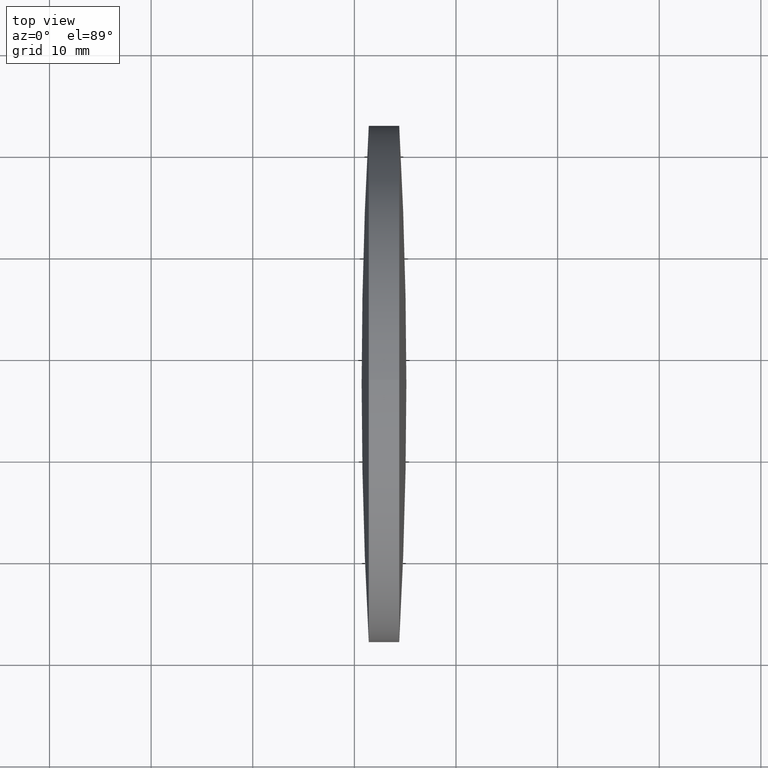
[diagram: clean part render]
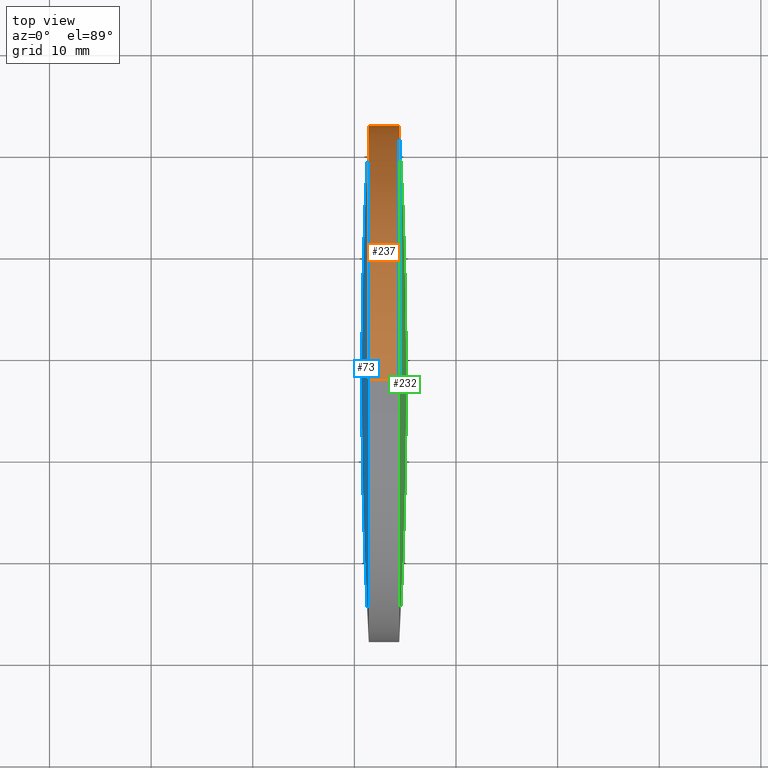
[diagram: same view with three faces highlighted in distinct colors, each labeled with its STEP entity id]
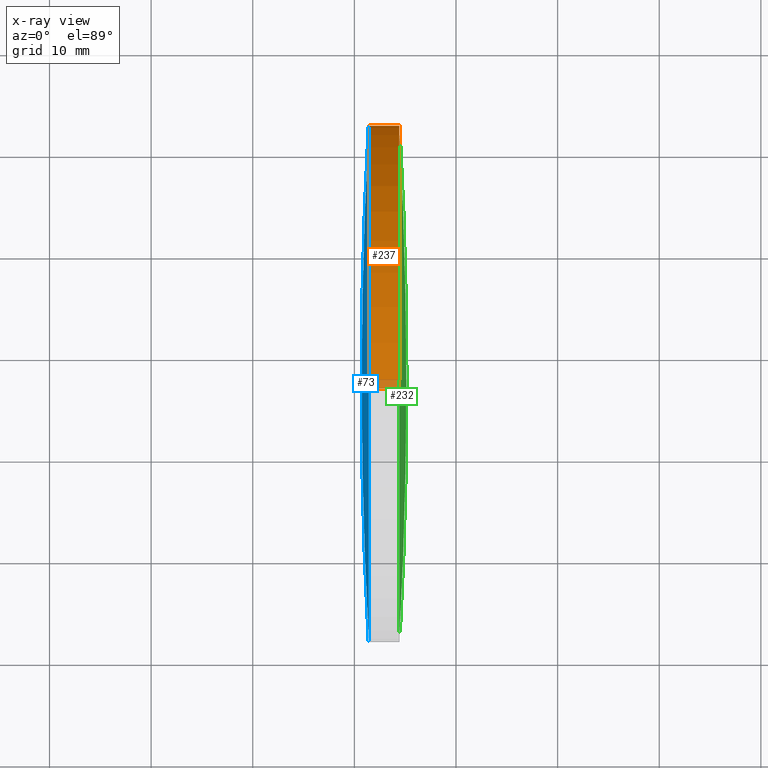
[diagram: x-ray of the same camera — body ghosted, the three highlighted faces saturated]
A machine part, top view with three faces highlighted in distinct colors.
The next image is the same camera in x-ray (body ghosted, the three faces saturated) — at least one of them is partly hidden behind the body in this view.
Their STEP definitions:

[orange] entity #237 — the highlighted cylindrical surface (partial cylindrical patch) has radius 25.4 mm, axis along (-1, -0, -0).
#3 = EDGE_CURVE ( 'NONE', #310, #177, #70, .T. ) ;
#9 = DIRECTION ( 'NONE',  ( -1.000000000000000000, -0.0000000000000000000, -0.0000000000000000000 ) ) ;
#15 = VERTEX_POINT ( 'NONE', #314 ) ;
#29 = EDGE_LOOP ( 'NONE', ( #327, #89, #121, #231, #117, #249 ) ) ;
#31 = DIRECTION ( 'NONE',  ( 0.0000000000000000000, 0.0000000000000000000, 1.000000000000000000 ) ) ;
#34 = DIRECTION ( 'NONE',  ( -1.000000000000000000, -0.0000000000000000000, -0.0000000000000000000 ) ) ;
#36 = DIRECTION ( 'NONE',  ( -1.000000000000000000, -0.0000000000000000000, -0.0000000000000000000 ) ) ;
#53 = DIRECTION ( 'NONE',  ( -1.000000000000000000, -0.0000000000000000000, -0.0000000000000000000 ) ) ;
#54 = EDGE_CURVE ( 'NONE', #195, #310, #289, .T. ) ;
#61 = CARTESIAN_POINT ( 'NONE',  ( 171.4164086921822200, 122.6322260463687600, 0.0000000000000000000 ) ) ;
#65 = CIRCLE ( 'NONE', #77, 25.39999999999999100 ) ;
#70 = CIRCLE ( 'NONE', #189, 25.39999999999999100 ) ;
#77 = AXIS2_PLACEMENT_3D ( 'NONE', #271, #9, #193 ) ;
#79 = DIRECTION ( 'NONE',  ( 0.0000000000000000000, 0.0000000000000000000, 1.000000000000000000 ) ) ;
#89 = ORIENTED_EDGE ( 'NONE', *, *, #203, .T. ) ;
#94 = FACE_OUTER_BOUND ( 'NONE', #29, .T. ) ;
#95 = VERTEX_POINT ( 'NONE', #268 ) ;
#104 = VECTOR ( 'NONE', #34, 1000.000000000000000 ) ;
#106 = AXIS2_PLACEMENT_3D ( 'NONE', #217, #164, #323 ) ;
#112 = CARTESIAN_POINT ( 'NONE',  ( 165.7441079421506900, 97.23222604636956100, 25.39999999999999100 ) ) ;
#117 = ORIENTED_EDGE ( 'NONE', *, *, #205, .F. ) ;
#121 = ORIENTED_EDGE ( 'NONE', *, *, #344, .F. ) ;
#127 = VECTOR ( 'NONE', #320, 1000.000000000000000 ) ;
#133 = CARTESIAN_POINT ( 'NONE',  ( 174.4163664064679400, 97.23222604636956100, 0.0000000000000000000 ) ) ;
#135 = CARTESIAN_POINT ( 'NONE',  ( 174.4163664064679400, 97.23222604636956100, 25.39999999999999100 ) ) ;
#142 = CARTESIAN_POINT ( 'NONE',  ( 174.4163664064679700, 122.6322260463689700, 0.0000000000000000000 ) ) ;
#143 = VERTEX_POINT ( 'NONE', #61 ) ;
#145 = AXIS2_PLACEMENT_3D ( 'NONE', #133, #322, #31 ) ;
#158 = CARTESIAN_POINT ( 'NONE',  ( 174.4163664064679400, 97.23222604636956100, 0.0000000000000000000 ) ) ;
#164 = DIRECTION ( 'NONE',  ( -1.000000000000000000, -0.0000000000000000000, -0.0000000000000000000 ) ) ;
#176 = LINE ( 'NONE', #112, #127 ) ;
#177 = VERTEX_POINT ( 'NONE', #295 ) ;
#183 = DIRECTION ( 'NONE',  ( 0.0000000000000000000, 0.0000000000000000000, 1.000000000000000000 ) ) ;
#189 = AXIS2_PLACEMENT_3D ( 'NONE', #158, #53, #183 ) ;
#191 = LINE ( 'NONE', #292, #104 ) ;
#193 = DIRECTION ( 'NONE',  ( 0.0000000000000000000, 0.0000000000000000000, 1.000000000000000000 ) ) ;
#195 = VERTEX_POINT ( 'NONE', #135 ) ;
#198 = CYLINDRICAL_SURFACE ( 'NONE', #266, 25.39999999999999100 ) ;
#203 = EDGE_CURVE ( 'NONE', #177, #95, #191, .T. ) ;
#205 = EDGE_CURVE ( 'NONE', #195, #15, #176, .T. ) ;
#217 = CARTESIAN_POINT ( 'NONE',  ( 171.4164086921822200, 97.23222604636956100, 0.0000000000000000000 ) ) ;
#231 = ORIENTED_EDGE ( 'NONE', *, *, #326, .F. ) ;
#235 = CARTESIAN_POINT ( 'NONE',  ( 165.7441079421506900, 97.23222604636956100, 0.0000000000000000000 ) ) ;
#237 = ADVANCED_FACE ( 'NONE', ( #94 ), #198, .T. ) ;
#249 = ORIENTED_EDGE ( 'NONE', *, *, #54, .T. ) ;
#263 = CIRCLE ( 'NONE', #106, 25.39999999999999100 ) ;
#266 = AXIS2_PLACEMENT_3D ( 'NONE', #235, #36, #79 ) ;
#268 = CARTESIAN_POINT ( 'NONE',  ( 171.4164086921822200, 97.23222604636956100, -25.39999999999999100 ) ) ;
#271 = CARTESIAN_POINT ( 'NONE',  ( 171.4164086921822200, 97.23222604636956100, 0.0000000000000000000 ) ) ;
#289 = CIRCLE ( 'NONE', #145, 25.39999999999999100 ) ;
#292 = CARTESIAN_POINT ( 'NONE',  ( 165.7441079421506900, 97.23222604636956100, -25.39999999999999100 ) ) ;
#295 = CARTESIAN_POINT ( 'NONE',  ( 174.4163664064679400, 97.23222604636956100, -25.39999999999999100 ) ) ;
#310 = VERTEX_POINT ( 'NONE', #142 ) ;
#314 = CARTESIAN_POINT ( 'NONE',  ( 171.4164086921822200, 97.23222604636956100, 25.39999999999999100 ) ) ;
#320 = DIRECTION ( 'NONE',  ( -1.000000000000000000, -0.0000000000000000000, -0.0000000000000000000 ) ) ;
#322 = DIRECTION ( 'NONE',  ( -1.000000000000000000, -0.0000000000000000000, -0.0000000000000000000 ) ) ;
#323 = DIRECTION ( 'NONE',  ( 0.0000000000000000000, 0.0000000000000000000, 1.000000000000000000 ) ) ;
#326 = EDGE_CURVE ( 'NONE', #15, #143, #65, .T. ) ;
#327 = ORIENTED_EDGE ( 'NONE', *, *, #3, .T. ) ;
#344 = EDGE_CURVE ( 'NONE', #143, #95, #263, .T. ) ;

[blue] entity #73 — the highlighted spherical surface has radius 461.168 mm.
#9 = DIRECTION ( 'NONE',  ( -1.000000000000000000, -0.0000000000000000000, -0.0000000000000000000 ) ) ;
#11 = SPHERICAL_SURFACE ( 'NONE', #24, 461.1675577966281000 ) ;
#15 = VERTEX_POINT ( 'NONE', #314 ) ;
#18 = ORIENTED_EDGE ( 'NONE', *, *, #326, .T. ) ;
#20 = EDGE_CURVE ( 'NONE', #143, #316, #212, .T. ) ;
#24 = AXIS2_PLACEMENT_3D ( 'NONE', #161, #241, #238 ) ;
#39 = CARTESIAN_POINT ( 'NONE',  ( 171.4164086921822200, 97.23222604636956100, 0.0000000000000000000 ) ) ;
#58 = CARTESIAN_POINT ( 'NONE',  ( 631.8839497459532600, 97.23222604636890800, 0.0000000000000000000 ) ) ;
#59 = CIRCLE ( 'NONE', #75, 461.1675577966281000 ) ;
#61 = CARTESIAN_POINT ( 'NONE',  ( 171.4164086921822200, 122.6322260463687600, 0.0000000000000000000 ) ) ;
#64 = AXIS2_PLACEMENT_3D ( 'NONE', #261, #215, #318 ) ;
#65 = CIRCLE ( 'NONE', #77, 25.39999999999999100 ) ;
#73 = ADVANCED_FACE ( 'NONE', ( #165 ), #11, .T. ) ;
#74 = ORIENTED_EDGE ( 'NONE', *, *, #302, .T. ) ;
#75 = AXIS2_PLACEMENT_3D ( 'NONE', #58, #324, #163 ) ;
#77 = AXIS2_PLACEMENT_3D ( 'NONE', #271, #9, #193 ) ;
#90 = DIRECTION ( 'NONE',  ( -1.000000000000000000, -0.0000000000000000000, -0.0000000000000000000 ) ) ;
#132 = ORIENTED_EDGE ( 'NONE', *, *, #225, .F. ) ;
#143 = VERTEX_POINT ( 'NONE', #61 ) ;
#155 = ORIENTED_EDGE ( 'NONE', *, *, #20, .T. ) ;
#161 = CARTESIAN_POINT ( 'NONE',  ( 631.8839497459532600, 97.23222604636890800, 0.0000000000000000000 ) ) ;
#163 = DIRECTION ( 'NONE',  ( 0.0000000000000000000, 1.000000000000000000, 1.224646799147353000E-016 ) ) ;
#165 = FACE_OUTER_BOUND ( 'NONE', #274, .T. ) ;
#172 = VERTEX_POINT ( 'NONE', #296 ) ;
#193 = DIRECTION ( 'NONE',  ( 0.0000000000000000000, 0.0000000000000000000, 1.000000000000000000 ) ) ;
#197 = AXIS2_PLACEMENT_3D ( 'NONE', #39, #90, #272 ) ;
#209 = CIRCLE ( 'NONE', #197, 25.39999999999999100 ) ;
#212 = CIRCLE ( 'NONE', #64, 461.1675577966279900 ) ;
#215 = DIRECTION ( 'NONE',  ( -0.0000000000000000000, 0.0000000000000000000, 1.000000000000000000 ) ) ;
#225 = EDGE_CURVE ( 'NONE', #172, #316, #59, .T. ) ;
#238 = DIRECTION ( 'NONE',  ( 0.0000000000000000000, 1.000000000000000000, 0.0000000000000000000 ) ) ;
#241 = DIRECTION ( 'NONE',  ( -0.0000000000000000000, 0.0000000000000000000, -1.000000000000000000 ) ) ;
#261 = CARTESIAN_POINT ( 'NONE',  ( 631.8839497459532600, 97.23222604636890800, 0.0000000000000000000 ) ) ;
#271 = CARTESIAN_POINT ( 'NONE',  ( 171.4164086921822200, 97.23222604636956100, 0.0000000000000000000 ) ) ;
#272 = DIRECTION ( 'NONE',  ( 0.0000000000000000000, 0.0000000000000000000, 1.000000000000000000 ) ) ;
#274 = EDGE_LOOP ( 'NONE', ( #132, #74, #18, #155 ) ) ;
#293 = CARTESIAN_POINT ( 'NONE',  ( 170.7163919493251900, 97.23222604636893600, 0.0000000000000000000 ) ) ;
#296 = CARTESIAN_POINT ( 'NONE',  ( 171.4164086921822200, 71.83222604636974000, -3.110602869834177100E-015 ) ) ;
#302 = EDGE_CURVE ( 'NONE', #172, #15, #209, .T. ) ;
#314 = CARTESIAN_POINT ( 'NONE',  ( 171.4164086921822200, 97.23222604636956100, 25.39999999999999100 ) ) ;
#316 = VERTEX_POINT ( 'NONE', #293 ) ;
#318 = DIRECTION ( 'NONE',  ( 1.000000000000000000, 0.0000000000000000000, 0.0000000000000000000 ) ) ;
#324 = DIRECTION ( 'NONE',  ( 0.0000000000000000000, 1.224646799147353200E-016, -1.000000000000000000 ) ) ;
#326 = EDGE_CURVE ( 'NONE', #15, #143, #65, .T. ) ;

[green] entity #232 — the highlighted spherical surface has radius 461.168 mm.
#1 = CARTESIAN_POINT ( 'NONE',  ( 175.1163831493249700, 97.23222604636886500, 0.0000000000000000000 ) ) ;
#2 = CIRCLE ( 'NONE', #60, 25.39999999999999100 ) ;
#10 = SPHERICAL_SURFACE ( 'NONE', #91, 461.1675577966340100 ) ;
#31 = DIRECTION ( 'NONE',  ( 0.0000000000000000000, 0.0000000000000000000, 1.000000000000000000 ) ) ;
#32 = ORIENTED_EDGE ( 'NONE', *, *, #54, .F. ) ;
#33 = EDGE_CURVE ( 'NONE', #55, #195, #2, .T. ) ;
#54 = EDGE_CURVE ( 'NONE', #195, #310, #289, .T. ) ;
#55 = VERTEX_POINT ( 'NONE', #265 ) ;
#60 = AXIS2_PLACEMENT_3D ( 'NONE', #137, #87, #107 ) ;
#71 = AXIS2_PLACEMENT_3D ( 'NONE', #190, #162, #82 ) ;
#82 = DIRECTION ( 'NONE',  ( 1.000000000000000000, 0.0000000000000000000, 0.0000000000000000000 ) ) ;
#87 = DIRECTION ( 'NONE',  ( -1.000000000000000000, -0.0000000000000000000, -0.0000000000000000000 ) ) ;
#91 = AXIS2_PLACEMENT_3D ( 'NONE', #109, #213, #140 ) ;
#92 = ORIENTED_EDGE ( 'NONE', *, *, #33, .F. ) ;
#107 = DIRECTION ( 'NONE',  ( 0.0000000000000000000, 0.0000000000000000000, 1.000000000000000000 ) ) ;
#109 = CARTESIAN_POINT ( 'NONE',  ( -286.0511746473089800, 97.23222604636883700, 0.0000000000000000000 ) ) ;
#133 = CARTESIAN_POINT ( 'NONE',  ( 174.4163664064679400, 97.23222604636956100, 0.0000000000000000000 ) ) ;
#135 = CARTESIAN_POINT ( 'NONE',  ( 174.4163664064679400, 97.23222604636956100, 25.39999999999999100 ) ) ;
#137 = CARTESIAN_POINT ( 'NONE',  ( 174.4163664064679400, 97.23222604636956100, 0.0000000000000000000 ) ) ;
#140 = DIRECTION ( 'NONE',  ( 0.0000000000000000000, 1.000000000000000000, 0.0000000000000000000 ) ) ;
#142 = CARTESIAN_POINT ( 'NONE',  ( 174.4163664064679700, 122.6322260463689700, 0.0000000000000000000 ) ) ;
#145 = AXIS2_PLACEMENT_3D ( 'NONE', #133, #322, #31 ) ;
#147 = VERTEX_POINT ( 'NONE', #1 ) ;
#152 = CIRCLE ( 'NONE', #71, 461.1675577966340100 ) ;
#162 = DIRECTION ( 'NONE',  ( -0.0000000000000000000, 0.0000000000000000000, 1.000000000000000000 ) ) ;
#185 = EDGE_CURVE ( 'NONE', #147, #310, #152, .T. ) ;
#190 = CARTESIAN_POINT ( 'NONE',  ( -286.0511746473089800, 97.23222604636883700, 0.0000000000000000000 ) ) ;
#195 = VERTEX_POINT ( 'NONE', #135 ) ;
#213 = DIRECTION ( 'NONE',  ( -0.0000000000000000000, 0.0000000000000000000, -1.000000000000000000 ) ) ;
#219 = DIRECTION ( 'NONE',  ( 0.0000000000000000000, 1.224646799147353200E-016, -1.000000000000000000 ) ) ;
#232 = ADVANCED_FACE ( 'NONE', ( #309 ), #10, .T. ) ;
#264 = ORIENTED_EDGE ( 'NONE', *, *, #185, .T. ) ;
#265 = CARTESIAN_POINT ( 'NONE',  ( 174.4163664064679700, 71.83222604636942800, -3.110602869834204700E-015 ) ) ;
#284 = ORIENTED_EDGE ( 'NONE', *, *, #332, .F. ) ;
#289 = CIRCLE ( 'NONE', #145, 25.39999999999999100 ) ;
#298 = CARTESIAN_POINT ( 'NONE',  ( -286.0511746473089800, 97.23222604636883700, 0.0000000000000000000 ) ) ;
#299 = DIRECTION ( 'NONE',  ( 0.0000000000000000000, 1.000000000000000000, 1.224646799147353200E-016 ) ) ;
#309 = FACE_OUTER_BOUND ( 'NONE', #335, .T. ) ;
#310 = VERTEX_POINT ( 'NONE', #142 ) ;
#312 = AXIS2_PLACEMENT_3D ( 'NONE', #298, #219, #299 ) ;
#322 = DIRECTION ( 'NONE',  ( -1.000000000000000000, -0.0000000000000000000, -0.0000000000000000000 ) ) ;
#332 = EDGE_CURVE ( 'NONE', #147, #55, #334, .T. ) ;
#334 = CIRCLE ( 'NONE', #312, 461.1675577966340100 ) ;
#335 = EDGE_LOOP ( 'NONE', ( #284, #264, #32, #92 ) ) ;